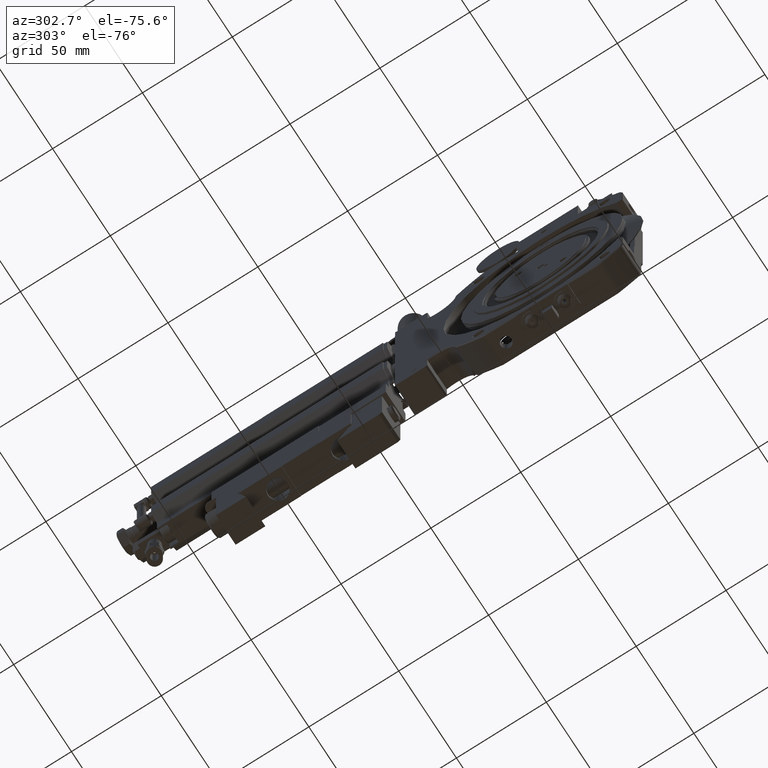
[diagram: clean part render]
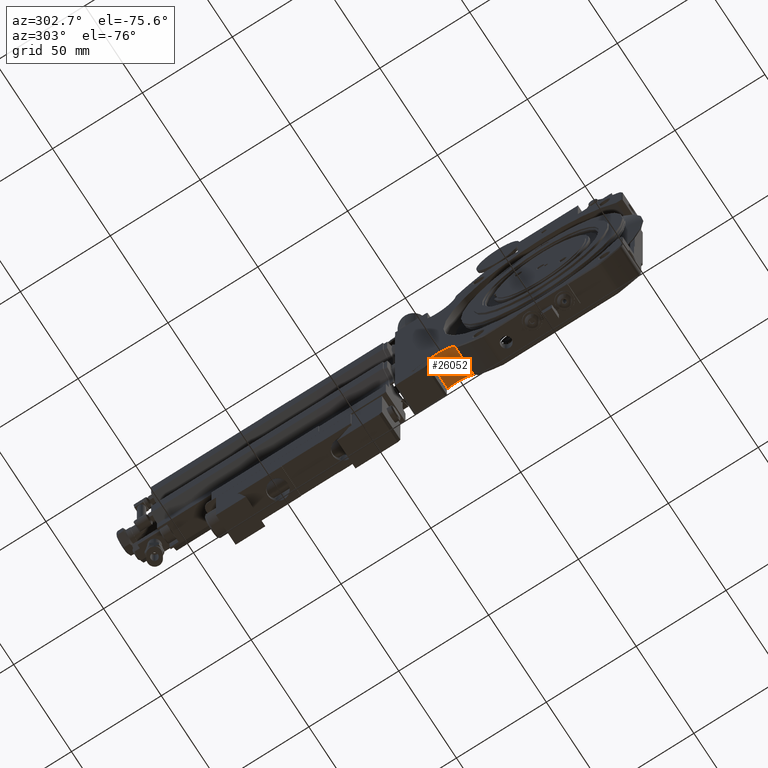
[diagram: same view with one face highlighted and labeled with its STEP entity id]
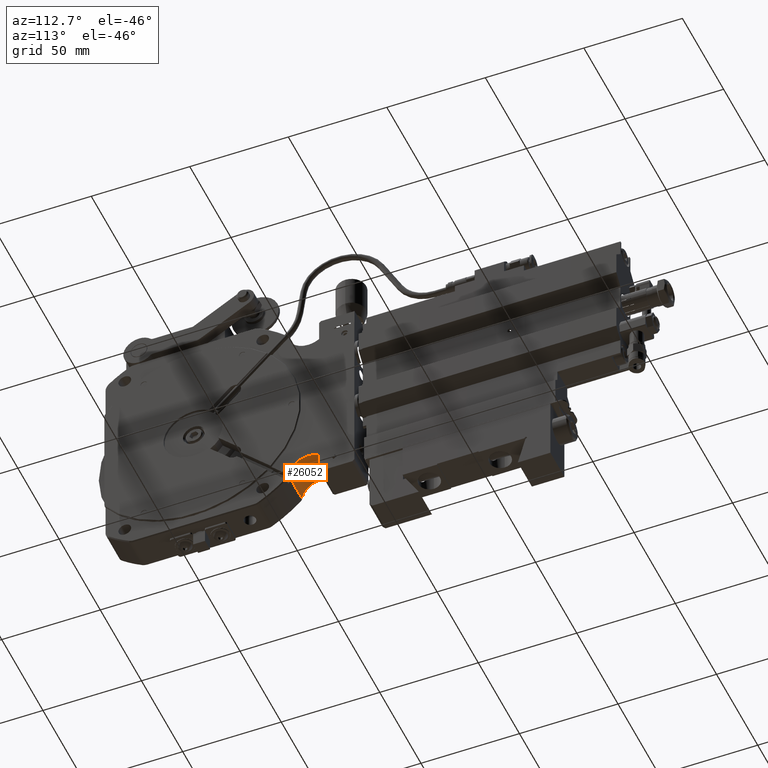
[diagram: same view with one face highlighted and labeled with its STEP entity id]
A machine part, auxiliary view. The second image highlights one B-rep face of the part: STEP entity #26052.
A second angle (auxiliary view) of the same face is appended — the face is thin or edge-on in the first view.
In plain terms, the highlighted cylindrical surface (edge-blend (fillet) strip) has radius 10 mm, axis along (1, 0, 0).
Its self-contained STEP definition (entity closure, byte-faithful):
#266 = VECTOR ( 'NONE', #61857, 39.37007874015748143 ) ;
#416 = EDGE_CURVE ( 'NONE', #10669, #11886, #47230, .T. ) ;
#1231 = CARTESIAN_POINT ( 'NONE',  ( -0.3346456692913040709, 2.522961837646509942, -1.525219526189327546 ) ) ;
#1576 = CIRCLE ( 'NONE', #50886, 0.3937007874015732711 ) ;
#2507 = LINE ( 'NONE', #1231, #21251 ) ;
#2737 = CARTESIAN_POINT ( 'NONE',  ( 0.3346456692913732378, 2.522961837646509942, -1.525219526189327546 ) ) ;
#3022 = DIRECTION ( 'NONE',  ( 0.000000000000000000, 0.000000000000000000, -1.000000000000000000 ) ) ;
#3350 = AXIS2_PLACEMENT_3D ( 'NONE', #16269, #36241, #17220 ) ;
#4019 = VECTOR ( 'NONE', #14458, 39.37007874015748143 ) ;
#5591 = ORIENTED_EDGE ( 'NONE', *, *, #61359, .F. ) ;
#10669 = VERTEX_POINT ( 'NONE', #19109 ) ;
#11157 = CARTESIAN_POINT ( 'NONE',  ( -0.3149606299212247551, 2.522961837646509942, -1.525219526189327546 ) ) ;
#11886 = VERTEX_POINT ( 'NONE', #11157 ) ;
#12361 = ORIENTED_EDGE ( 'NONE', *, *, #416, .T. ) ;
#12657 = FACE_OUTER_BOUND ( 'NONE', #53154, .T. ) ;
#12967 = DIRECTION ( 'NONE',  ( 1.000000000000000000, 2.775557561562891351E-17, 0.000000000000000000 ) ) ;
#13570 = EDGE_CURVE ( 'NONE', #31371, #35087, #25977, .T. ) ;
#14458 = DIRECTION ( 'NONE',  ( 1.000000000000000000, 2.775557561562891351E-17, 0.000000000000000000 ) ) ;
#15507 = EDGE_CURVE ( 'NONE', #31371, #54380, #42152, .T. ) ;
#16269 = CARTESIAN_POINT ( 'NONE',  ( 0.2165354330709008401, 2.326111443945721557, -1.866174409569025139 ) ) ;
#17033 = ORIENTED_EDGE ( 'NONE', *, *, #32168, .T. ) ;
#17220 = DIRECTION ( 'NONE',  ( 0.000000000000000000, 0.000000000000000000, -1.000000000000000000 ) ) ;
#17888 = CARTESIAN_POINT ( 'NONE',  ( 0.2165354330709008401, 1.933487011438784986, -1.837082056635221061 ) ) ;
#19109 = CARTESIAN_POINT ( 'NONE',  ( -0.3149606299212246441, 2.326111443945721557, -1.472473622167451923 ) ) ;
#19442 = CARTESIAN_POINT ( 'NONE',  ( -0.3149606299212246441, 2.326111443945721557, -1.866174409569025139 ) ) ;
#19993 = CIRCLE ( 'NONE', #55943, 0.3937007874015732711 ) ;
#20908 = DIRECTION ( 'NONE',  ( 0.000000000000000000, 6.938893903907255988E-16, -1.000000000000000000 ) ) ;
#21251 = VECTOR ( 'NONE', #21492, 39.37007874015748143 ) ;
#21492 = DIRECTION ( 'NONE',  ( 1.000000000000000000, 2.775557561562891351E-17, 0.000000000000000000 ) ) ;
#21563 = CARTESIAN_POINT ( 'NONE',  ( -0.3149606299212246441, 2.326111443945721557, -1.866174409569025139 ) ) ;
#22991 = CYLINDRICAL_SURFACE ( 'NONE', #61021, 0.3937007874015732711 ) ;
#25977 = CIRCLE ( 'NONE', #3350, 0.3937007874015732711 ) ;
#26052 = ADVANCED_FACE ( 'NONE', ( #12657 ), #22991, .F. ) ;
#30062 = CARTESIAN_POINT ( 'NONE',  ( 0.2165354330709008401, 1.935363636941451304, -1.818044779173888736 ) ) ;
#31371 = VERTEX_POINT ( 'NONE', #17888 ) ;
#32168 = EDGE_CURVE ( 'NONE', #11886, #62768, #2507, .T. ) ;
#32270 = CARTESIAN_POINT ( 'NONE',  ( -0.3346456692913039044, 1.933487011438784986, -1.837082056635221061 ) ) ;
#32611 = ORIENTED_EDGE ( 'NONE', *, *, #13570, .F. ) ;
#34662 = CARTESIAN_POINT ( 'NONE',  ( 0.3346456692913732378, 1.935363636941451304, -1.818044779173888736 ) ) ;
#34932 = DIRECTION ( 'NONE',  ( 0.000000000000000000, 0.000000000000000000, -1.000000000000000000 ) ) ;
#35087 = VERTEX_POINT ( 'NONE', #30062 ) ;
#35243 = DIRECTION ( 'NONE',  ( -1.000000000000000000, -2.775557561562891351E-17, 0.000000000000000000 ) ) ;
#35259 = ORIENTED_EDGE ( 'NONE', *, *, #15507, .T. ) ;
#36040 = CARTESIAN_POINT ( 'NONE',  ( 0.3346456692913732378, 2.326111443945721557, -1.866174409569025139 ) ) ;
#36045 = DIRECTION ( 'NONE',  ( -1.000000000000000000, -2.775557561562891351E-17, 0.000000000000000000 ) ) ;
#36241 = DIRECTION ( 'NONE',  ( -1.000000000000000000, -2.775557561562891351E-17, -0.000000000000000000 ) ) ;
#40329 = CARTESIAN_POINT ( 'NONE',  ( -0.3149606299212246441, 1.933487011438784986, -1.837082056635221061 ) ) ;
#40490 = DIRECTION ( 'NONE',  ( -1.000000000000000000, -2.775557561562891351E-17, -0.000000000000000000 ) ) ;
#41025 = AXIS2_PLACEMENT_3D ( 'NONE', #21563, #36045, #56288 ) ;
#41769 = EDGE_CURVE ( 'NONE', #54380, #10669, #1576, .T. ) ;
#41904 = CARTESIAN_POINT ( 'NONE',  ( -0.3346456692913039044, 2.326111443945721557, -1.866174409569025139 ) ) ;
#42152 = LINE ( 'NONE', #32270, #266 ) ;
#44928 = EDGE_CURVE ( 'NONE', #35087, #51276, #49192, .T. ) ;
#47230 = CIRCLE ( 'NONE', #41025, 0.3937007874015732711 ) ;
#49192 = LINE ( 'NONE', #52793, #4019 ) ;
#50886 = AXIS2_PLACEMENT_3D ( 'NONE', #19442, #35243, #34932 ) ;
#51276 = VERTEX_POINT ( 'NONE', #34662 ) ;
#51847 = ORIENTED_EDGE ( 'NONE', *, *, #41769, .T. ) ;
#52793 = CARTESIAN_POINT ( 'NONE',  ( -0.3346456692913039044, 1.935363636941451304, -1.818044779173888736 ) ) ;
#53154 = EDGE_LOOP ( 'NONE', ( #35259, #51847, #12361, #17033, #5591, #61735, #32611 ) ) ;
#54380 = VERTEX_POINT ( 'NONE', #40329 ) ;
#55943 = AXIS2_PLACEMENT_3D ( 'NONE', #36040, #40490, #20908 ) ;
#56288 = DIRECTION ( 'NONE',  ( 0.000000000000000000, 2.775557561562902395E-15, -1.000000000000000000 ) ) ;
#61021 = AXIS2_PLACEMENT_3D ( 'NONE', #41904, #12967, #3022 ) ;
#61359 = EDGE_CURVE ( 'NONE', #51276, #62768, #19993, .T. ) ;
#61735 = ORIENTED_EDGE ( 'NONE', *, *, #44928, .F. ) ;
#61857 = DIRECTION ( 'NONE',  ( -1.000000000000000000, -2.775557561562891351E-17, -0.000000000000000000 ) ) ;
#62768 = VERTEX_POINT ( 'NONE', #2737 ) ;